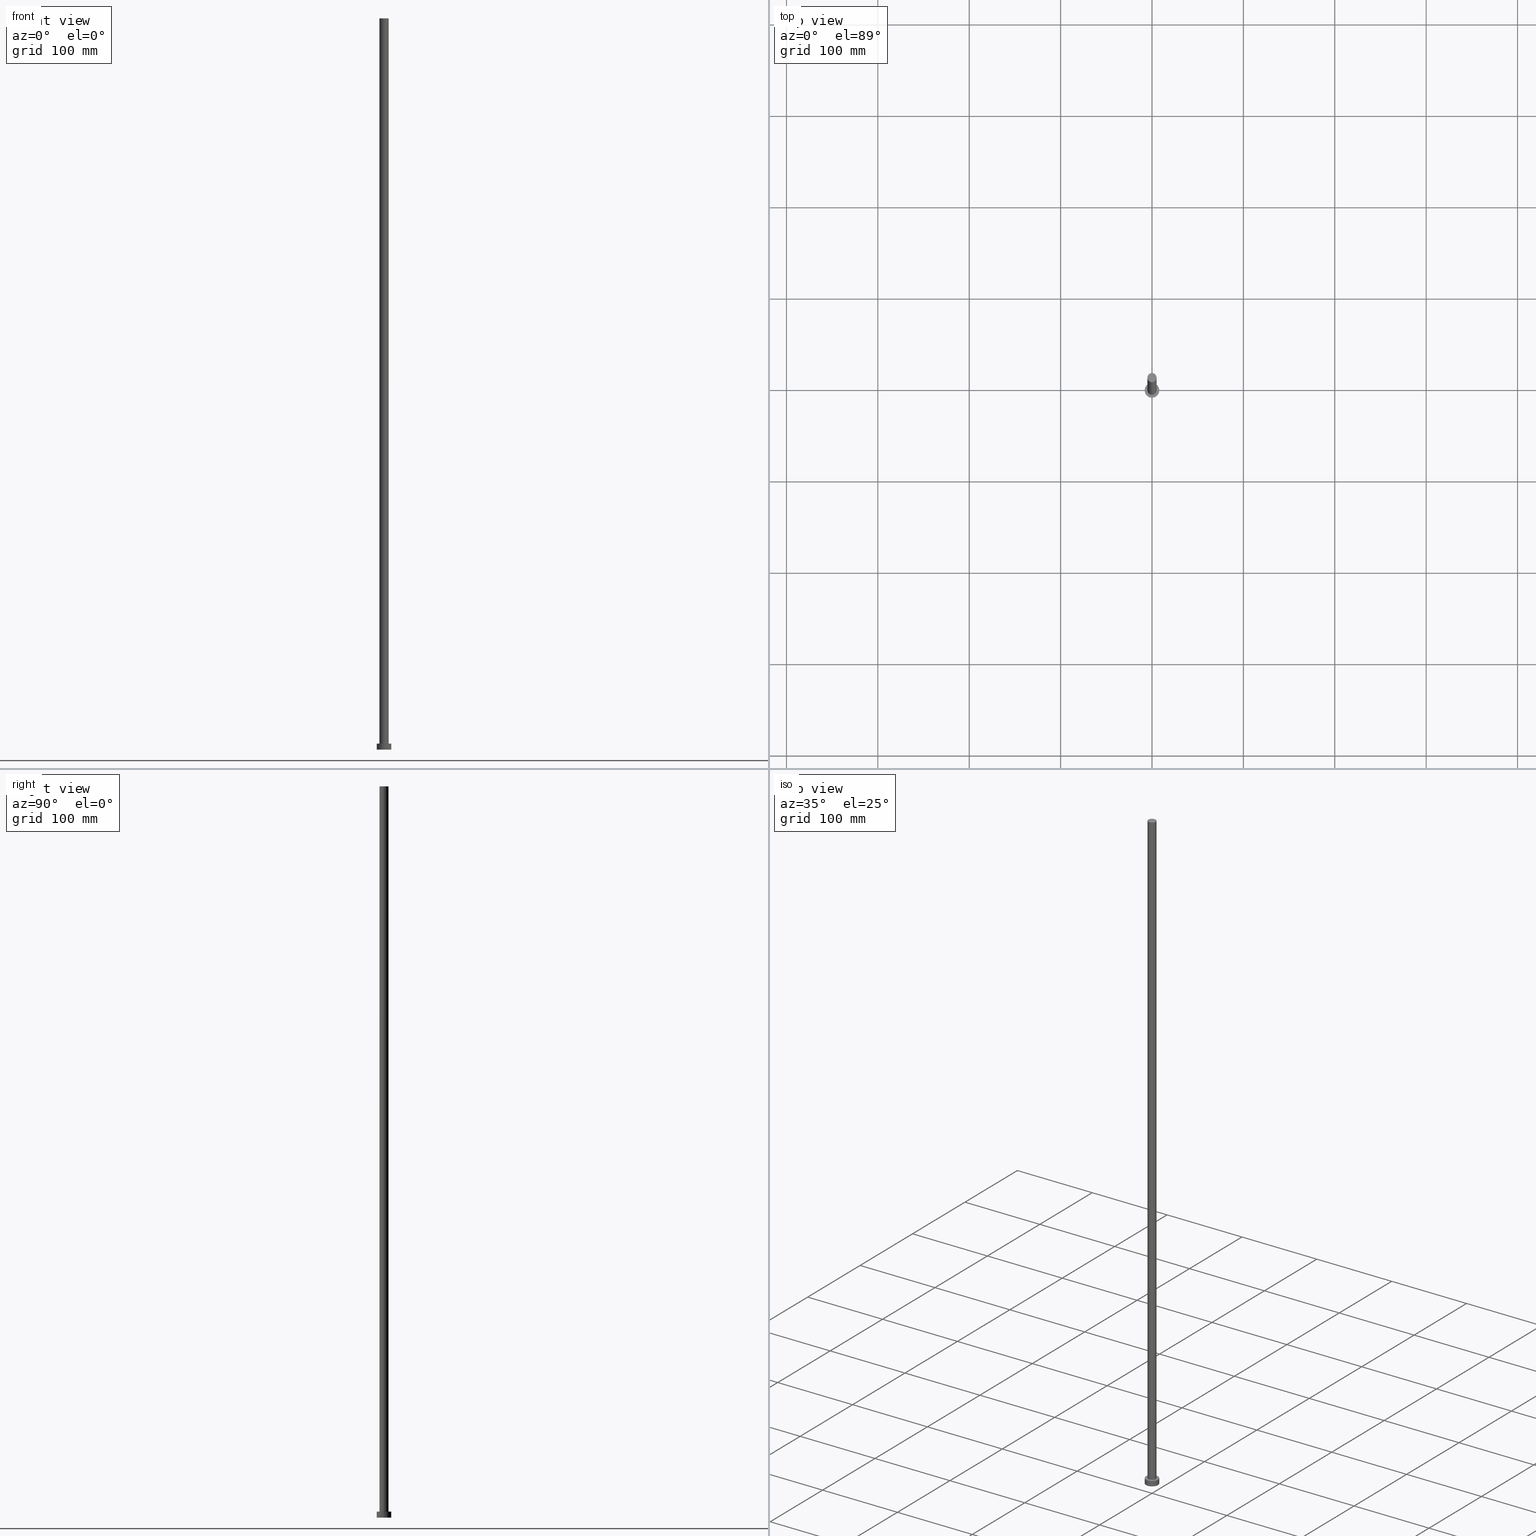
[diagram: canonical four-view strip — front | top / right | iso, engineering-drawing reading convention]
A machine part, canonical four-view strip (front | top / right | iso — engineering-drawing reading convention). The complete STEP part file that produces these views, byte-faithful:
ISO-10303-21;
HEADER;
FILE_DESCRIPTION (( 'STEP AP203' ),
    '1' );
FILE_NAME ('9979.STEP',
    '2023-02-13T13:08:32',
    ( '' ),
    ( '' ),
    'SwSTEP 2.0',
    'SolidWorks 2019',
    '' );
FILE_SCHEMA (( 'CONFIG_CONTROL_DESIGN' ));
ENDSEC;

DATA;
#1 = PLANE ( 'NONE',  #72 ) ;
#2 = PERSON_AND_ORGANIZATION ( #181, #190 ) ;
#3 = DIRECTION ( 'NONE',  ( 0.000000000000000000, 0.000000000000000000, 1.000000000000000000 ) ) ;
#4 = COORDINATED_UNIVERSAL_TIME_OFFSET ( 1, 0, .AHEAD. ) ;
#5 = DIRECTION ( 'NONE',  ( 0.000000000000000000, 0.000000000000000000, 1.000000000000000000 ) ) ;
#6 = APPROVAL_DATE_TIME ( #46, #192 ) ;
#7 = DIRECTION ( 'NONE',  ( 0.000000000000000000, 0.000000000000000000, 1.000000000000000000 ) ) ;
#8 = LOCAL_TIME ( 14, 8, 32.00000000000000000, #4 ) ;
#9 = DIRECTION ( 'NONE',  ( -0.000000000000000000, -0.000000000000000000, -1.000000000000000000 ) ) ;
#10 = DIRECTION ( 'NONE',  ( 0.000000000000000000, 0.000000000000000000, 1.000000000000000000 ) ) ;
#11 = ORIENTED_EDGE ( 'NONE', *, *, #126, .F. ) ;
#12 = APPLICATION_CONTEXT ( 'configuration controlled 3d designs of mechanical parts and assemblies' ) ;
#13 = CYLINDRICAL_SURFACE ( 'NONE', #115, 5.000000000000000888 ) ;
#14 = ORIENTED_EDGE ( 'NONE', *, *, #232, .F. ) ;
#15 = CC_DESIGN_PERSON_AND_ORGANIZATION_ASSIGNMENT ( #153, #195, ( #193 ) ) ;
#16 =( NAMED_UNIT ( * ) SI_UNIT ( $, .STERADIAN. ) SOLID_ANGLE_UNIT ( ) );
#17 = ORIENTED_EDGE ( 'NONE', *, *, #126, .T. ) ;
#18 = ORIENTED_EDGE ( 'NONE', *, *, #49, .F. ) ;
#19 = AXIS2_PLACEMENT_3D ( 'NONE', #25, #26, #20 ) ;
#20 = DIRECTION ( 'NONE',  ( 1.000000000000000000, 0.000000000000000000, -0.000000000000000000 ) ) ;
#21 = APPROVAL_ROLE ( '' ) ;
#22 = LINE ( 'NONE', #161, #100 ) ;
#23 = PERSON_AND_ORGANIZATION_ROLE ( 'creator' ) ;
#24 = VECTOR ( 'NONE', #9, 1000.000000000000000 ) ;
#25 = CARTESIAN_POINT ( 'NONE',  ( 0.000000000000000000, 0.000000000000000000, 6.500000000000000000 ) ) ;
#26 = DIRECTION ( 'NONE',  ( 0.000000000000000000, 0.000000000000000000, 1.000000000000000000 ) ) ;
#27 = CC_DESIGN_PERSON_AND_ORGANIZATION_ASSIGNMENT ( #137, #213, ( #40 ) ) ;
#28 = DIRECTION ( 'NONE',  ( -1.000000000000000000, 0.000000000000000000, 0.000000000000000000 ) ) ;
#29 = AXIS2_PLACEMENT_3D ( 'NONE', #77, #164, #149 ) ;
#30 = DIRECTION ( 'NONE',  ( 1.000000000000000000, 0.000000000000000000, -0.000000000000000000 ) ) ;
#31 = ADVANCED_FACE ( 'NONE', ( #43 ), #1, .F. ) ;
#32 = ORIENTED_EDGE ( 'NONE', *, *, #227, .F. ) ;
#33 = PRODUCT_DEFINITION_FORMATION_WITH_SPECIFIED_SOURCE ( 'LIBOVOLN�', '', #109, .NOT_KNOWN. ) ;
#34 = DIRECTION ( 'NONE',  ( 0.000000000000000000, 0.000000000000000000, 1.000000000000000000 ) ) ;
#35 = DESIGN_CONTEXT ( 'detailed design', #53, 'design' ) ;
#36 = PERSON_AND_ORGANIZATION_ROLE ( 'design_owner' ) ;
#37 = ADVANCED_BREP_SHAPE_REPRESENTATION ( '9979', ( #211, #152 ), #70 ) ;
#38 = APPROVAL_PERSON_ORGANIZATION ( #141, #148, #217 ) ;
#39 = DIRECTION ( 'NONE',  ( 0.000000000000000000, 0.000000000000000000, 1.000000000000000000 ) ) ;
#40 = PRODUCT_DEFINITION ( 'NEZN�M�', '', #33, #35 ) ;
#41 = EDGE_LOOP ( 'NONE', ( #56, #91, #250, #58 ) ) ;
#42 = PERSON_AND_ORGANIZATION_ROLE ( 'design_supplier' ) ;
#43 = FACE_OUTER_BOUND ( 'NONE', #129, .T. ) ;
#44 = APPROVAL_DATE_TIME ( #138, #148 ) ;
#45 = ORIENTED_EDGE ( 'NONE', *, *, #232, .T. ) ;
#46 = DATE_AND_TIME ( #125, #131 ) ;
#47 = CALENDAR_DATE ( 2023, 13, 2 ) ;
#48 = FACE_OUTER_BOUND ( 'NONE', #185, .T. ) ;
#49 = EDGE_CURVE ( 'NONE', #225, #187, #140, .T. ) ;
#50 = CARTESIAN_POINT ( 'NONE',  ( 0.000000000000000000, 0.000000000000000000, 799.9999999999998863 ) ) ;
#51 = DIRECTION ( 'NONE',  ( 1.000000000000000000, 0.000000000000000000, 0.000000000000000000 ) ) ;
#52 = CC_DESIGN_APPROVAL ( #148, ( #40 ) ) ;
#53 = APPLICATION_CONTEXT ( 'configuration controlled 3d designs of mechanical parts and assemblies' ) ;
#54 = VERTEX_POINT ( 'NONE', #202 ) ;
#55 = LINE ( 'NONE', #130, #59 ) ;
#56 = ORIENTED_EDGE ( 'NONE', *, *, #112, .F. ) ;
#57 = EDGE_CURVE ( 'NONE', #165, #174, #248, .T. ) ;
#58 = ORIENTED_EDGE ( 'NONE', *, *, #96, .T. ) ;
#59 = VECTOR ( 'NONE', #89, 1000.000000000000000 ) ;
#60 = AXIS2_PLACEMENT_3D ( 'NONE', #180, #7, #30 ) ;
#61 = UNCERTAINTY_MEASURE_WITH_UNIT (LENGTH_MEASURE( 1.000000000000000082E-05 ), #110, 'distance_accuracy_value', 'NONE');
#62 = CIRCLE ( 'NONE', #201, 8.000000000000000000 ) ;
#63 = VECTOR ( 'NONE', #66, 1000.000000000000000 ) ;
#64 = COORDINATED_UNIVERSAL_TIME_OFFSET ( 1, 0, .AHEAD. ) ;
#65 = APPROVAL_STATUS ( 'not_yet_approved' ) ;
#66 = DIRECTION ( 'NONE',  ( -0.000000000000000000, -0.000000000000000000, -1.000000000000000000 ) ) ;
#67 = SECURITY_CLASSIFICATION_LEVEL ( 'unclassified' ) ;
#68 = DIRECTION ( 'NONE',  ( 1.000000000000000000, 0.000000000000000000, 0.000000000000000000 ) ) ;
#69 = DIRECTION ( 'NONE',  ( 0.000000000000000000, 0.000000000000000000, 1.000000000000000000 ) ) ;
#70 =( GEOMETRIC_REPRESENTATION_CONTEXT ( 3 ) GLOBAL_UNCERTAINTY_ASSIGNED_CONTEXT ( ( #61 ) ) GLOBAL_UNIT_ASSIGNED_CONTEXT ( ( #110, #246, #16 ) ) REPRESENTATION_CONTEXT ( 'NONE', 'WORKASPACE' ) );
#71 = CARTESIAN_POINT ( 'NONE',  ( 0.000000000000000000, 0.000000000000000000, 0.000000000000000000 ) ) ;
#72 = AXIS2_PLACEMENT_3D ( 'NONE', #71, #3, #244 ) ;
#73 = CC_DESIGN_SECURITY_CLASSIFICATION ( #193, ( #33 ) ) ;
#74 = CC_DESIGN_PERSON_AND_ORGANIZATION_ASSIGNMENT ( #103, #42, ( #33 ) ) ;
#75 = CARTESIAN_POINT ( 'NONE',  ( -8.000000000000000000, 0.000000000000000000, 6.500000000000000000 ) ) ;
#76 = ORIENTED_EDGE ( 'NONE', *, *, #184, .T. ) ;
#77 = CARTESIAN_POINT ( 'NONE',  ( 0.000000000000000000, 0.000000000000000000, 6.500000000000000000 ) ) ;
#78 = ORIENTED_EDGE ( 'NONE', *, *, #179, .T. ) ;
#79 = CC_DESIGN_PERSON_AND_ORGANIZATION_ASSIGNMENT ( #254, #36, ( #109 ) ) ;
#80 = CARTESIAN_POINT ( 'NONE',  ( 0.000000000000000000, 0.000000000000000000, 799.9999999999998863 ) ) ;
#81 = CC_DESIGN_DATE_AND_TIME_ASSIGNMENT ( #156, #199, ( #40 ) ) ;
#82 = VERTEX_POINT ( 'NONE', #108 ) ;
#83 = ORIENTED_EDGE ( 'NONE', *, *, #49, .T. ) ;
#84 = APPROVAL_PERSON_ORGANIZATION ( #216, #215, #241 ) ;
#85 = DATE_TIME_ROLE ( 'classification_date' ) ;
#86 = DIRECTION ( 'NONE',  ( -0.000000000000000000, -0.000000000000000000, -1.000000000000000000 ) ) ;
#87 = AXIS2_PLACEMENT_3D ( 'NONE', #106, #239, #68 ) ;
#88 = CARTESIAN_POINT ( 'NONE',  ( 0.000000000000000000, 0.000000000000000000, 0.000000000000000000 ) ) ;
#89 = DIRECTION ( 'NONE',  ( -0.000000000000000000, -0.000000000000000000, -1.000000000000000000 ) ) ;
#90 = CIRCLE ( 'NONE', #121, 5.000000000000000888 ) ;
#91 = ORIENTED_EDGE ( 'NONE', *, *, #57, .F. ) ;
#92 = CARTESIAN_POINT ( 'NONE',  ( 0.000000000000000000, 0.000000000000000000, 799.9999999999998863 ) ) ;
#93 = AXIS2_PLACEMENT_3D ( 'NONE', #177, #86, #160 ) ;
#94 = ORIENTED_EDGE ( 'NONE', *, *, #240, .T. ) ;
#95 = AXIS2_PLACEMENT_3D ( 'NONE', #127, #104, #120 ) ;
#96 = EDGE_CURVE ( 'NONE', #136, #82, #159, .T. ) ;
#97 = LOCAL_TIME ( 14, 8, 32.00000000000000000, #143 ) ;
#98 = PRODUCT_RELATED_PRODUCT_CATEGORY ( 'detail', '', ( #109 ) ) ;
#99 = APPROVAL_STATUS ( 'not_yet_approved' ) ;
#100 = VECTOR ( 'NONE', #163, 1000.000000000000000 ) ;
#101 = CARTESIAN_POINT ( 'NONE',  ( 0.000000000000000000, 0.000000000000000000, 6.500000000000000000 ) ) ;
#102 = EDGE_LOOP ( 'NONE', ( #117, #212 ) ) ;
#103 = PERSON_AND_ORGANIZATION ( #181, #190 ) ;
#104 = DIRECTION ( 'NONE',  ( 0.000000000000000000, 0.000000000000000000, 1.000000000000000000 ) ) ;
#105 = APPROVAL_STATUS ( 'not_yet_approved' ) ;
#106 = CARTESIAN_POINT ( 'NONE',  ( 0.000000000000000000, 0.000000000000000000, 6.500000000000000000 ) ) ;
#107 = CLOSED_SHELL ( 'NONE', ( #189, #118, #207, #162, #31, #209, #173 ) ) ;
#108 = CARTESIAN_POINT ( 'NONE',  ( 5.000000000000000888, 6.123233995736767268E-16, 6.500000000000000000 ) ) ;
#109 = PRODUCT ( '9979', '9979', '', ( #255 ) ) ;
#110 =( LENGTH_UNIT ( ) NAMED_UNIT ( * ) SI_UNIT ( .MILLI., .METRE. ) );
#111 = CARTESIAN_POINT ( 'NONE',  ( 5.000000000000000888, 6.123233995736767268E-16, 799.9999999999998863 ) ) ;
#112 = EDGE_CURVE ( 'NONE', #174, #82, #22, .T. ) ;
#113 = ORIENTED_EDGE ( 'NONE', *, *, #145, .F. ) ;
#114 = CARTESIAN_POINT ( 'NONE',  ( 0.000000000000000000, 0.000000000000000000, 6.500000000000000000 ) ) ;
#115 = AXIS2_PLACEMENT_3D ( 'NONE', #92, #167, #28 ) ;
#116 = ORIENTED_EDGE ( 'NONE', *, *, #57, .T. ) ;
#117 = ORIENTED_EDGE ( 'NONE', *, *, #96, .F. ) ;
#118 = ADVANCED_FACE ( 'NONE', ( #48 ), #142, .T. ) ;
#119 = COORDINATED_UNIVERSAL_TIME_OFFSET ( 1, 0, .AHEAD. ) ;
#120 = DIRECTION ( 'NONE',  ( 1.000000000000000000, 0.000000000000000000, 0.000000000000000000 ) ) ;
#121 = AXIS2_PLACEMENT_3D ( 'NONE', #114, #188, #51 ) ;
#122 = EDGE_LOOP ( 'NONE', ( #83, #168 ) ) ;
#123 = PERSON_AND_ORGANIZATION ( #181, #190 ) ;
#124 = ORIENTED_EDGE ( 'NONE', *, *, #240, .F. ) ;
#125 = CALENDAR_DATE ( 2023, 13, 2 ) ;
#126 = EDGE_CURVE ( 'NONE', #54, #229, #230, .T. ) ;
#127 = CARTESIAN_POINT ( 'NONE',  ( 0.000000000000000000, 0.000000000000000000, 799.9999999999998863 ) ) ;
#128 = PLANE ( 'NONE',  #60 ) ;
#129 = EDGE_LOOP ( 'NONE', ( #14, #11 ) ) ;
#130 = CARTESIAN_POINT ( 'NONE',  ( 8.000000000000000000, 9.797174393178823685E-16, 6.500000000000000000 ) ) ;
#131 = LOCAL_TIME ( 14, 8, 32.00000000000000000, #64 ) ;
#132 = APPLICATION_PROTOCOL_DEFINITION ( 'international standard', 'config_control_design', 1994, #12 ) ;
#133 = EDGE_LOOP ( 'NONE', ( #32, #18, #76, #45 ) ) ;
#134 = CC_DESIGN_APPROVAL ( #215, ( #193 ) ) ;
#135 = AXIS2_PLACEMENT_3D ( 'NONE', #88, #5, #218 ) ;
#136 = VERTEX_POINT ( 'NONE', #242 ) ;
#137 = PERSON_AND_ORGANIZATION ( #181, #190 ) ;
#138 = DATE_AND_TIME ( #47, #8 ) ;
#139 = FACE_BOUND ( 'NONE', #102, .T. ) ;
#140 = CIRCLE ( 'NONE', #205, 8.000000000000000000 ) ;
#141 = PERSON_AND_ORGANIZATION ( #181, #190 ) ;
#142 = CYLINDRICAL_SURFACE ( 'NONE', #93, 8.000000000000000000 ) ;
#143 = COORDINATED_UNIVERSAL_TIME_OFFSET ( 1, 0, .AHEAD. ) ;
#144 = PLANE ( 'NONE',  #19 ) ;
#145 = EDGE_CURVE ( 'NONE', #187, #225, #237, .T. ) ;
#146 = CARTESIAN_POINT ( 'NONE',  ( 8.000000000000000000, 9.797174393178823685E-16, 6.500000000000000000 ) ) ;
#147 = ORIENTED_EDGE ( 'NONE', *, *, #184, .F. ) ;
#148 = APPROVAL ( #99, 'NEUR�EN�' ) ;
#149 = DIRECTION ( 'NONE',  ( -1.000000000000000000, 0.000000000000000000, 0.000000000000000000 ) ) ;
#150 = DIRECTION ( 'NONE',  ( -1.000000000000000000, 0.000000000000000000, 0.000000000000000000 ) ) ;
#151 = EDGE_LOOP ( 'NONE', ( #124, #224, #78, #208 ) ) ;
#152 = AXIS2_PLACEMENT_3D ( 'NONE', #210, #39, #170 ) ;
#153 = PERSON_AND_ORGANIZATION ( #181, #190 ) ;
#154 = DATE_AND_TIME ( #171, #235 ) ;
#155 = DIRECTION ( 'NONE',  ( 0.000000000000000000, 0.000000000000000000, 1.000000000000000000 ) ) ;
#156 = DATE_AND_TIME ( #238, #243 ) ;
#157 = EDGE_CURVE ( 'NONE', #165, #136, #172, .T. ) ;
#158 = APPROVAL_DATE_TIME ( #154, #215 ) ;
#159 = CIRCLE ( 'NONE', #191, 5.000000000000000888 ) ;
#160 = DIRECTION ( 'NONE',  ( -1.000000000000000000, 0.000000000000000000, 0.000000000000000000 ) ) ;
#161 = CARTESIAN_POINT ( 'NONE',  ( 5.000000000000000888, 6.123233995736767268E-16, 799.9999999999998863 ) ) ;
#162 = ADVANCED_FACE ( 'NONE', ( #139, #196 ), #144, .T. ) ;
#163 = DIRECTION ( 'NONE',  ( -0.000000000000000000, -0.000000000000000000, -1.000000000000000000 ) ) ;
#164 = DIRECTION ( 'NONE',  ( -0.000000000000000000, -0.000000000000000000, -1.000000000000000000 ) ) ;
#165 = VERTEX_POINT ( 'NONE', #178 ) ;
#166 = AXIS2_PLACEMENT_3D ( 'NONE', #80, #223, #150 ) ;
#167 = DIRECTION ( 'NONE',  ( -0.000000000000000000, -0.000000000000000000, -1.000000000000000000 ) ) ;
#168 = ORIENTED_EDGE ( 'NONE', *, *, #145, .T. ) ;
#169 = FACE_OUTER_BOUND ( 'NONE', #41, .T. ) ;
#170 = DIRECTION ( 'NONE',  ( 1.000000000000000000, 0.000000000000000000, 0.000000000000000000 ) ) ;
#171 = CALENDAR_DATE ( 2023, 13, 2 ) ;
#172 = LINE ( 'NONE', #200, #63 ) ;
#173 = ADVANCED_FACE ( 'NONE', ( #219 ), #128, .T. ) ;
#174 = VERTEX_POINT ( 'NONE', #111 ) ;
#175 = CC_DESIGN_APPROVAL ( #192, ( #33 ) ) ;
#176 = CALENDAR_DATE ( 2023, 13, 2 ) ;
#177 = CARTESIAN_POINT ( 'NONE',  ( 0.000000000000000000, 0.000000000000000000, 6.500000000000000000 ) ) ;
#178 = CARTESIAN_POINT ( 'NONE',  ( -5.000000000000000888, 0.000000000000000000, 799.9999999999998863 ) ) ;
#179 = EDGE_CURVE ( 'NONE', #82, #136, #90, .T. ) ;
#180 = CARTESIAN_POINT ( 'NONE',  ( 0.000000000000000000, 0.000000000000000000, 799.9999999999998863 ) ) ;
#181 = PERSON ( 'NEUR�EN�', 'NEUR�EN�', 'NEUR�EN�', ('NEUR�EN�'), ('NEUR�EN�'), ('NEUR�EN�') ) ;
#182 = CYLINDRICAL_SURFACE ( 'NONE', #166, 5.000000000000000888 ) ;
#183 = DIRECTION ( 'NONE',  ( 1.000000000000000000, 0.000000000000000000, 0.000000000000000000 ) ) ;
#184 = EDGE_CURVE ( 'NONE', #225, #229, #203, .T. ) ;
#185 = EDGE_LOOP ( 'NONE', ( #113, #236, #17, #147 ) ) ;
#186 = FACE_OUTER_BOUND ( 'NONE', #151, .T. ) ;
#187 = VERTEX_POINT ( 'NONE', #146 ) ;
#188 = DIRECTION ( 'NONE',  ( 0.000000000000000000, 0.000000000000000000, 1.000000000000000000 ) ) ;
#189 = ADVANCED_FACE ( 'NONE', ( #186 ), #13, .T. ) ;
#190 = ORGANIZATION ( 'NEUR�EN�', 'NEUR�EN�', '' ) ;
#191 = AXIS2_PLACEMENT_3D ( 'NONE', #101, #69, #234 ) ;
#192 = APPROVAL ( #65, 'NEUR�EN�' ) ;
#193 = SECURITY_CLASSIFICATION ( '', '', #67 ) ;
#194 = CIRCLE ( 'NONE', #226, 5.000000000000000888 ) ;
#195 = PERSON_AND_ORGANIZATION_ROLE ( 'classification_officer' ) ;
#196 = FACE_OUTER_BOUND ( 'NONE', #122, .T. ) ;
#197 = DATE_AND_TIME ( #176, #97 ) ;
#198 = DIRECTION ( 'NONE',  ( 1.000000000000000000, 0.000000000000000000, 0.000000000000000000 ) ) ;
#199 = DATE_TIME_ROLE ( 'creation_date' ) ;
#200 = CARTESIAN_POINT ( 'NONE',  ( -5.000000000000000888, 0.000000000000000000, 799.9999999999998863 ) ) ;
#201 = AXIS2_PLACEMENT_3D ( 'NONE', #222, #10, #206 ) ;
#202 = CARTESIAN_POINT ( 'NONE',  ( 8.000000000000000000, 9.797174393178823685E-16, 0.000000000000000000 ) ) ;
#203 = LINE ( 'NONE', #75, #24 ) ;
#204 = CARTESIAN_POINT ( 'NONE',  ( -8.000000000000000000, 0.000000000000000000, 6.500000000000000000 ) ) ;
#205 = AXIS2_PLACEMENT_3D ( 'NONE', #220, #155, #198 ) ;
#206 = DIRECTION ( 'NONE',  ( 1.000000000000000000, 0.000000000000000000, 0.000000000000000000 ) ) ;
#207 = ADVANCED_FACE ( 'NONE', ( #249 ), #221, .T. ) ;
#208 = ORIENTED_EDGE ( 'NONE', *, *, #157, .F. ) ;
#209 = ADVANCED_FACE ( 'NONE', ( #169 ), #182, .T. ) ;
#210 = CARTESIAN_POINT ( 'NONE',  ( 0.000000000000000000, 0.000000000000000000, 0.000000000000000000 ) ) ;
#211 = MANIFOLD_SOLID_BREP ( 'P�idat vysunut�m3', #107 ) ;
#212 = ORIENTED_EDGE ( 'NONE', *, *, #179, .F. ) ;
#213 = PERSON_AND_ORGANIZATION_ROLE ( 'creator' ) ;
#214 = EDGE_LOOP ( 'NONE', ( #116, #94 ) ) ;
#215 = APPROVAL ( #105, 'NEUR�EN�' ) ;
#216 = PERSON_AND_ORGANIZATION ( #181, #190 ) ;
#217 = APPROVAL_ROLE ( '' ) ;
#218 = DIRECTION ( 'NONE',  ( 1.000000000000000000, 0.000000000000000000, 0.000000000000000000 ) ) ;
#219 = FACE_OUTER_BOUND ( 'NONE', #214, .T. ) ;
#220 = CARTESIAN_POINT ( 'NONE',  ( 0.000000000000000000, 0.000000000000000000, 6.500000000000000000 ) ) ;
#221 = CYLINDRICAL_SURFACE ( 'NONE', #29, 8.000000000000000000 ) ;
#222 = CARTESIAN_POINT ( 'NONE',  ( 0.000000000000000000, 0.000000000000000000, 0.000000000000000000 ) ) ;
#223 = DIRECTION ( 'NONE',  ( -0.000000000000000000, -0.000000000000000000, -1.000000000000000000 ) ) ;
#224 = ORIENTED_EDGE ( 'NONE', *, *, #112, .T. ) ;
#225 = VERTEX_POINT ( 'NONE', #204 ) ;
#226 = AXIS2_PLACEMENT_3D ( 'NONE', #50, #34, #183 ) ;
#227 = EDGE_CURVE ( 'NONE', #187, #54, #55, .T. ) ;
#228 = APPLICATION_PROTOCOL_DEFINITION ( 'international standard', 'config_control_design', 1994, #53 ) ;
#229 = VERTEX_POINT ( 'NONE', #245 ) ;
#230 = CIRCLE ( 'NONE', #135, 8.000000000000000000 ) ;
#231 = COORDINATED_UNIVERSAL_TIME_OFFSET ( 1, 0, .AHEAD. ) ;
#232 = EDGE_CURVE ( 'NONE', #229, #54, #62, .T. ) ;
#233 = SHAPE_DEFINITION_REPRESENTATION ( #251, #37 ) ;
#234 = DIRECTION ( 'NONE',  ( 1.000000000000000000, 0.000000000000000000, 0.000000000000000000 ) ) ;
#235 = LOCAL_TIME ( 14, 8, 32.00000000000000000, #119 ) ;
#236 = ORIENTED_EDGE ( 'NONE', *, *, #227, .T. ) ;
#237 = CIRCLE ( 'NONE', #87, 8.000000000000000000 ) ;
#238 = CALENDAR_DATE ( 2023, 13, 2 ) ;
#239 = DIRECTION ( 'NONE',  ( 0.000000000000000000, 0.000000000000000000, 1.000000000000000000 ) ) ;
#240 = EDGE_CURVE ( 'NONE', #174, #165, #194, .T. ) ;
#241 = APPROVAL_ROLE ( '' ) ;
#242 = CARTESIAN_POINT ( 'NONE',  ( -5.000000000000000888, 0.000000000000000000, 6.500000000000000000 ) ) ;
#243 = LOCAL_TIME ( 14, 8, 32.00000000000000000, #231 ) ;
#244 = DIRECTION ( 'NONE',  ( 1.000000000000000000, 0.000000000000000000, -0.000000000000000000 ) ) ;
#245 = CARTESIAN_POINT ( 'NONE',  ( -8.000000000000000000, 0.000000000000000000, 0.000000000000000000 ) ) ;
#246 =( NAMED_UNIT ( * ) PLANE_ANGLE_UNIT ( ) SI_UNIT ( $, .RADIAN. ) );
#247 = CC_DESIGN_DATE_AND_TIME_ASSIGNMENT ( #197, #85, ( #193 ) ) ;
#248 = CIRCLE ( 'NONE', #95, 5.000000000000000888 ) ;
#249 = FACE_OUTER_BOUND ( 'NONE', #133, .T. ) ;
#250 = ORIENTED_EDGE ( 'NONE', *, *, #157, .T. ) ;
#251 = PRODUCT_DEFINITION_SHAPE ( 'NONE', 'NONE',  #40 ) ;
#252 = APPROVAL_PERSON_ORGANIZATION ( #123, #192, #21 ) ;
#253 = CC_DESIGN_PERSON_AND_ORGANIZATION_ASSIGNMENT ( #2, #23, ( #33 ) ) ;
#254 = PERSON_AND_ORGANIZATION ( #181, #190 ) ;
#255 = MECHANICAL_CONTEXT ( 'NONE', #12, 'mechanical' ) ;
ENDSEC;
END-ISO-10303-21;
